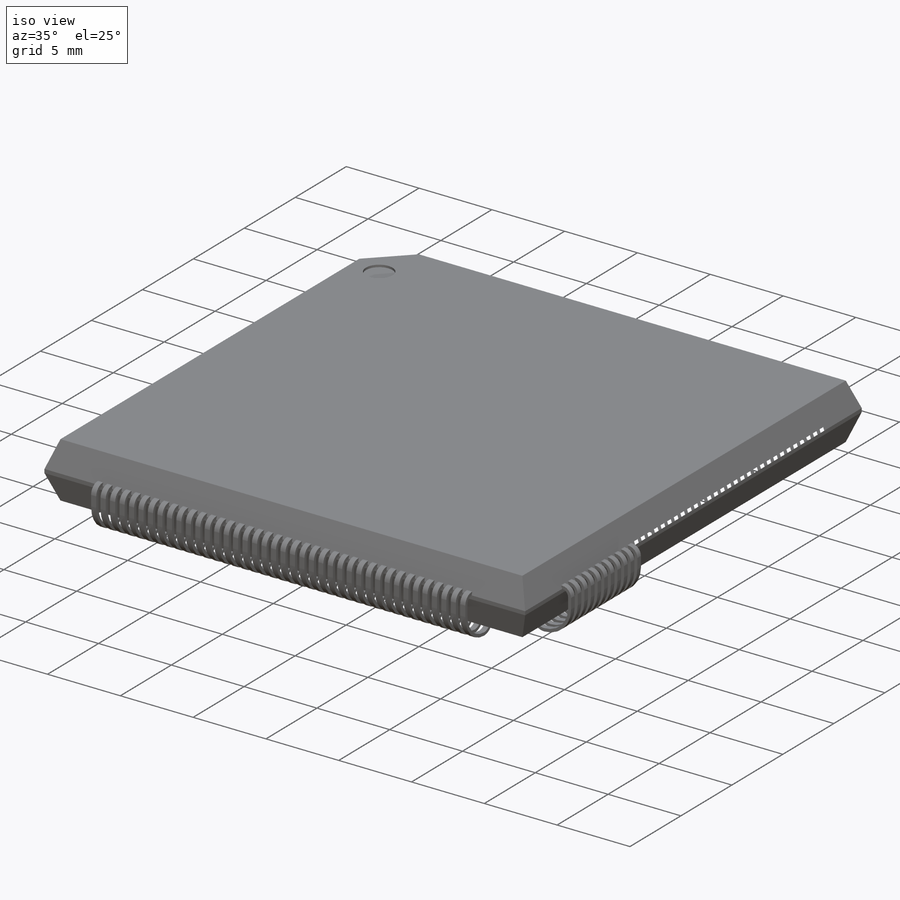
[diagram: iso view]
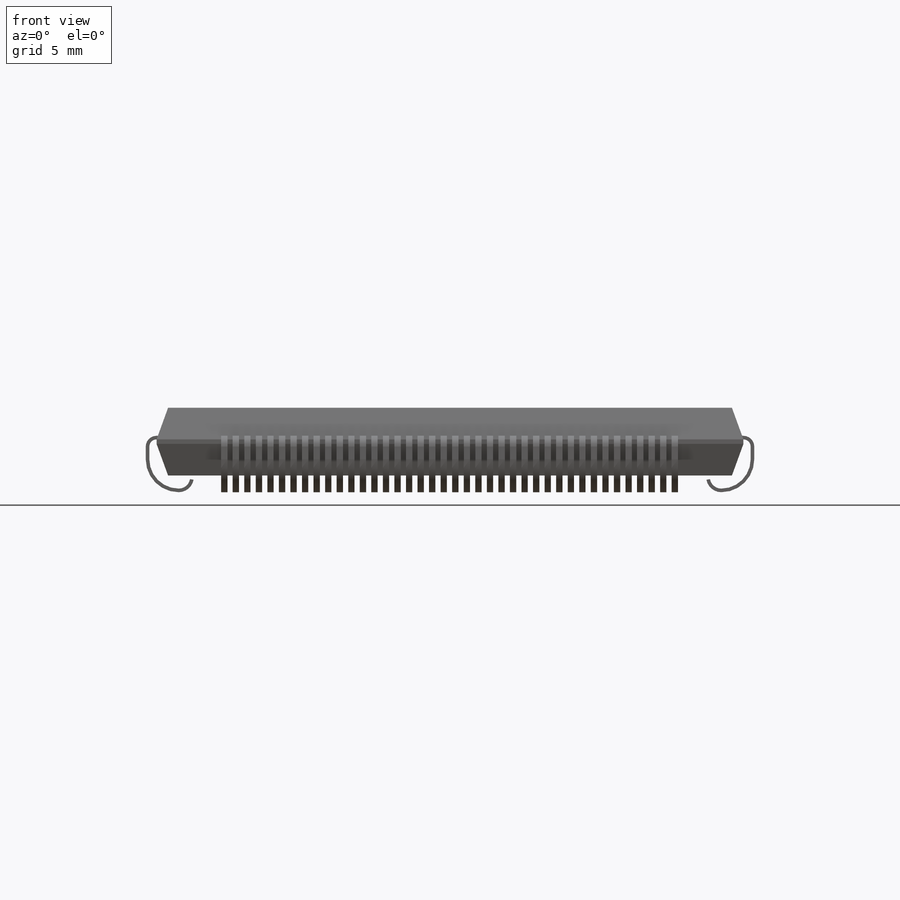
[diagram: front view]
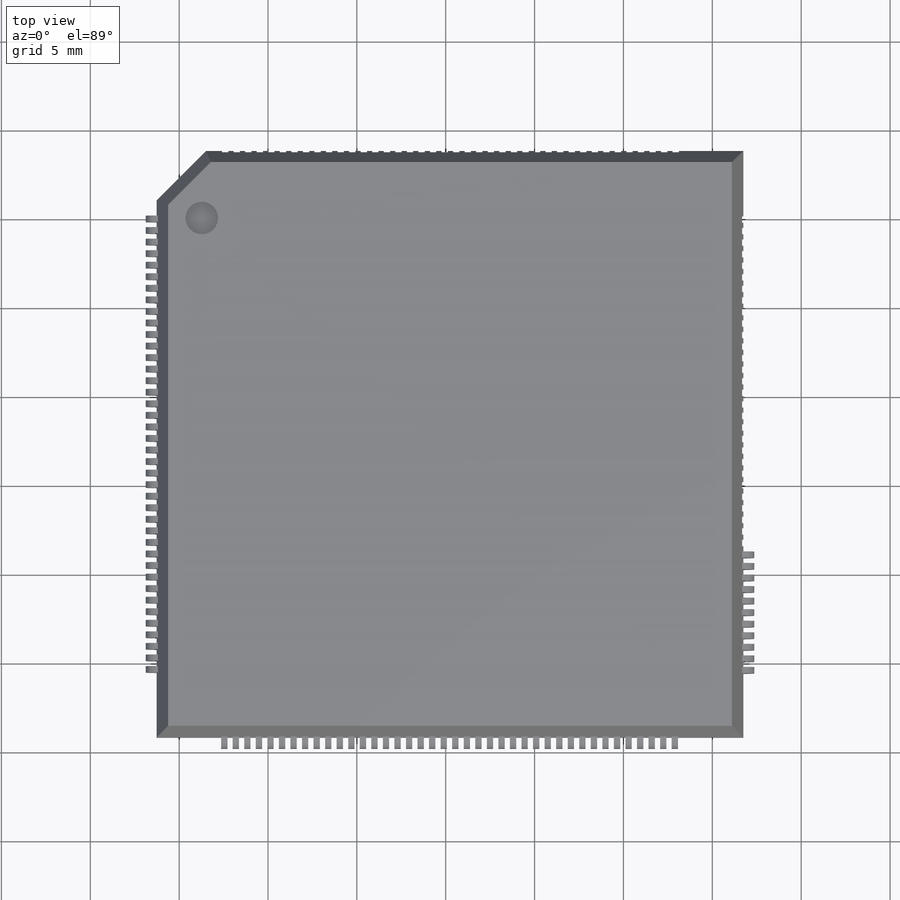
[diagram: top view]
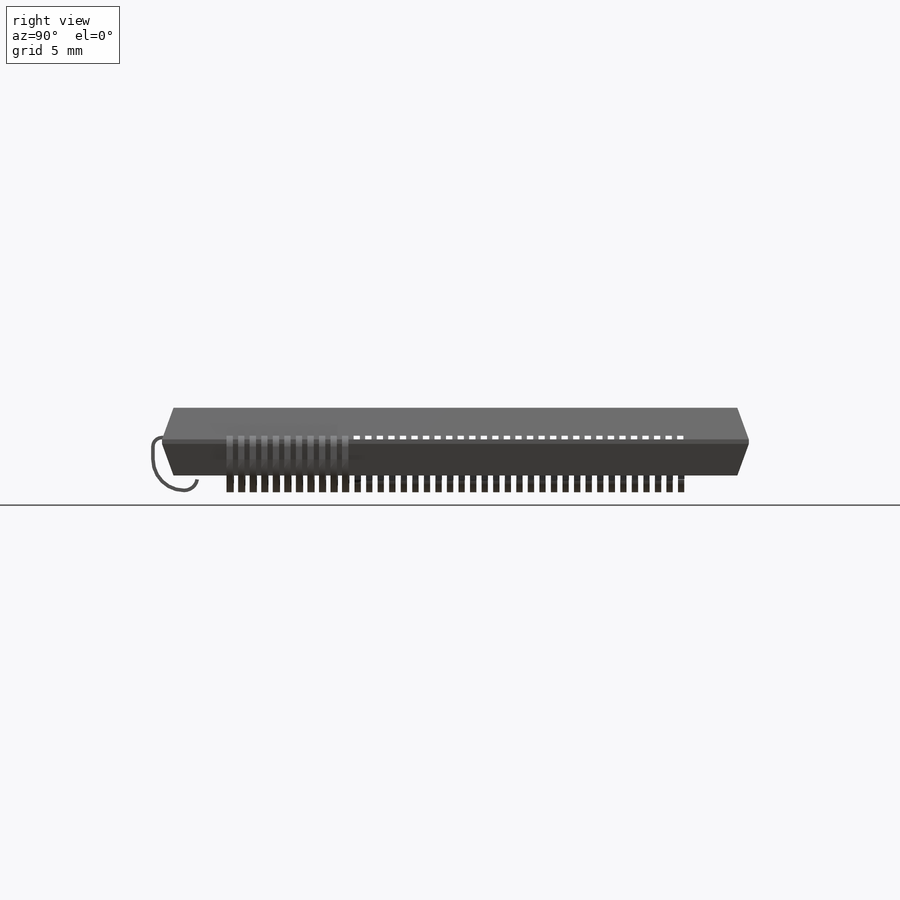
[diagram: right view]
SOLIDWORKS PART (.sldprt)
format: sldprt  version: not decoded by parser v0  size: 1,670,144 bytes
history: native  units: mm
features: sketch x5, plane x2, cut_extrude x2, material x1, extrude x1, chamfer x1, pattern_linear x1, pattern_circular x1 (+12 scaffold rows collapsed)
feature tree (26):
  scaffold x12  (default folders/planes/origin — collapsed)
  material  "Material <not specified>"
  plane  "Plane1"  Offset=0.7112mm
  sketch  "Sketch1"  dims[c1.D1=33.02mm c1.D2=33.02mm c1.D3=3.81mm c1.D4=1.27mm c2.D3=3.81mm c2.D4=1.27mm]
  extrude  "Base-Extrude"  Depth=3.81mm
  sketch  "Sketch2"  dims[c1.D1=~4.528253mm c2.D1=45.0deg c2.D2=3.937mm]
  cut_extrude  "Cut-Extrude1"  [1 undecoded]
  chamfer  "Chamfer1"  Distance=1.778mm Angle=20deg
  sketch  "Sketch3"  dims[D2=~1.831594mm D1=1.27mm]
  cut_extrude  "Cut-Extrude2"  Depth=0.1524mm
  sketch  "Sketch4"  dims[c1.D1=0.4064mm c1.D3=1.651mm c1.D4=0.6477mm c1.D2=0.7112mm c1.D5=0.2032mm c2.D1=0.3556mm c2.D5=0.2032mm c2.D6=2.54mm c2.D7=5.0mm]
  pattern_linear  "LPattern1"  Count1=40 Count2=1 Spacing1=0.649986mm Spacing2=2.54mm
  pattern_circular  "CirPattern1"  Count=4 Angle=90deg
  plane  "Board Plane"  Offset=0.2286mm
  sketch  "Component_Outline"
decode coverage: 9 of 11 modeling features carry decoded parameters
note: ~ marks probable driven/reference dimensions
note: 1 parameter value undecoded
note: suppression state not decoded; provenance and decode notes live in map.json
